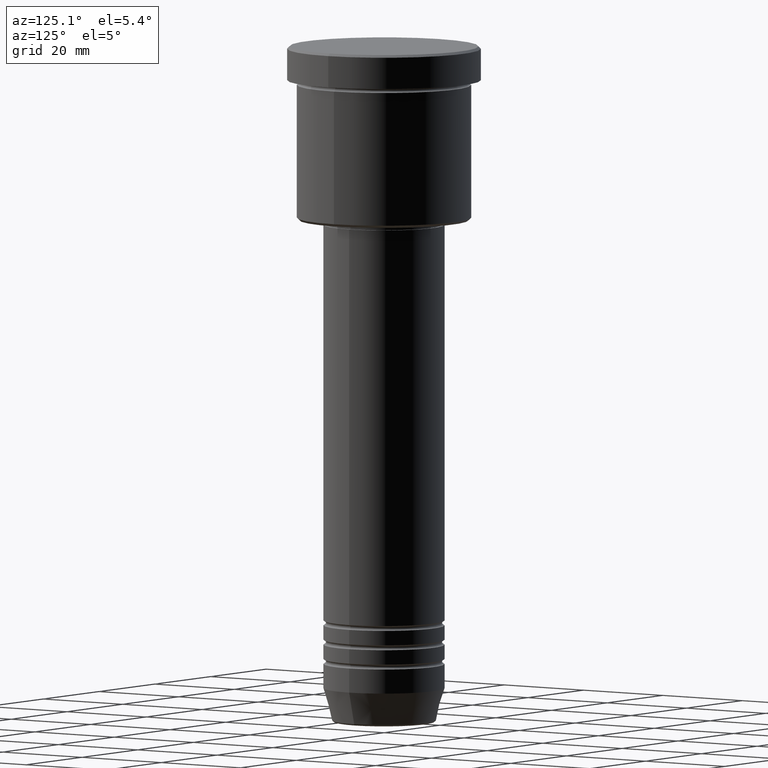
[diagram: clean part render]
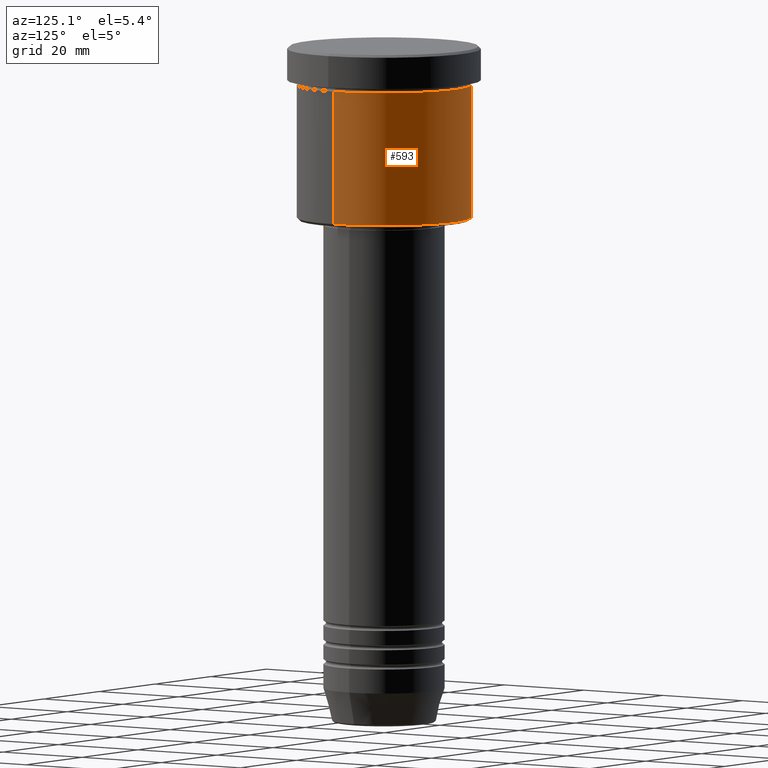
[diagram: same view with one face highlighted and labeled with its STEP entity id]
A machine part, auxiliary view. The second image highlights one B-rep face of the part: STEP entity #593.
In plain terms, the highlighted cylindrical surface (partial cylindrical patch) has radius 18 mm, axis along (-0, -0, 1).
Its self-contained STEP definition (entity closure, byte-faithful):
#4 = VECTOR ( 'NONE', #1109, 1000.000000000000000 ) ;
#10 = AXIS2_PLACEMENT_3D ( 'NONE', #1078, #75, #604 ) ;
#33 = ORIENTED_EDGE ( 'NONE', *, *, #601, .T. ) ;
#54 = DIRECTION ( 'NONE',  ( -0.000000000000000000, -0.000000000000000000, 1.000000000000000000 ) ) ;
#62 = CIRCLE ( 'NONE', #1013, 18.00000000000000000 ) ;
#75 = DIRECTION ( 'NONE',  ( -0.000000000000000000, -0.000000000000000000, 1.000000000000000000 ) ) ;
#96 = CARTESIAN_POINT ( 'NONE',  ( -18.00000000000000000, 2.204364238465235428E-15, -35.50000000000000711 ) ) ;
#219 = AXIS2_PLACEMENT_3D ( 'NONE', #714, #54, #799 ) ;
#308 = LINE ( 'NONE', #397, #4 ) ;
#332 = DIRECTION ( 'NONE',  ( -0.000000000000000000, -0.000000000000000000, 1.000000000000000000 ) ) ;
#338 = CARTESIAN_POINT ( 'NONE',  ( -18.00000000000000000, 2.204364238465235428E-15, 0.000000000000000000 ) ) ;
#344 = EDGE_CURVE ( 'NONE', #666, #1147, #801, .T. ) ;
#389 = VERTEX_POINT ( 'NONE', #1168 ) ;
#397 = CARTESIAN_POINT ( 'NONE',  ( 18.00000000000000000, 0.000000000000000000, 0.000000000000000000 ) ) ;
#440 = ORIENTED_EDGE ( 'NONE', *, *, #985, .F. ) ;
#445 = EDGE_CURVE ( 'NONE', #389, #934, #62, .T. ) ;
#549 = CARTESIAN_POINT ( 'NONE',  ( 0.000000000000000000, 0.000000000000000000, -35.50000000000000711 ) ) ;
#593 = ADVANCED_FACE ( 'NONE', ( #1080 ), #614, .T. ) ;
#601 = EDGE_CURVE ( 'NONE', #934, #1147, #1071, .T. ) ;
#604 = DIRECTION ( 'NONE',  ( 1.000000000000000000, 0.000000000000000000, 0.000000000000000000 ) ) ;
#614 = CYLINDRICAL_SURFACE ( 'NONE', #219, 18.00000000000000000 ) ;
#654 = EDGE_LOOP ( 'NONE', ( #900, #33, #1004, #440 ) ) ;
#666 = VERTEX_POINT ( 'NONE', #709 ) ;
#709 = CARTESIAN_POINT ( 'NONE',  ( 18.00000000000000000, 0.000000000000000000, -7.999999999999996447 ) ) ;
#714 = CARTESIAN_POINT ( 'NONE',  ( 0.000000000000000000, 0.000000000000000000, 0.000000000000000000 ) ) ;
#799 = DIRECTION ( 'NONE',  ( 1.000000000000000000, 0.000000000000000000, 0.000000000000000000 ) ) ;
#801 = CIRCLE ( 'NONE', #10, 18.00000000000000000 ) ;
#891 = VECTOR ( 'NONE', #332, 1000.000000000000000 ) ;
#900 = ORIENTED_EDGE ( 'NONE', *, *, #445, .T. ) ;
#934 = VERTEX_POINT ( 'NONE', #96 ) ;
#935 = DIRECTION ( 'NONE',  ( -1.000000000000000000, 0.000000000000000000, 0.000000000000000000 ) ) ;
#985 = EDGE_CURVE ( 'NONE', #389, #666, #308, .T. ) ;
#1001 = DIRECTION ( 'NONE',  ( -0.000000000000000000, -0.000000000000000000, 1.000000000000000000 ) ) ;
#1004 = ORIENTED_EDGE ( 'NONE', *, *, #344, .F. ) ;
#1013 = AXIS2_PLACEMENT_3D ( 'NONE', #549, #1001, #935 ) ;
#1071 = LINE ( 'NONE', #338, #891 ) ;
#1078 = CARTESIAN_POINT ( 'NONE',  ( 0.000000000000000000, 0.000000000000000000, -7.999999999999996447 ) ) ;
#1080 = FACE_OUTER_BOUND ( 'NONE', #654, .T. ) ;
#1109 = DIRECTION ( 'NONE',  ( -0.000000000000000000, -0.000000000000000000, 1.000000000000000000 ) ) ;
#1147 = VERTEX_POINT ( 'NONE', #1154 ) ;
#1154 = CARTESIAN_POINT ( 'NONE',  ( -18.00000000000000000, 2.204364238465235428E-15, -7.999999999999996447 ) ) ;
#1168 = CARTESIAN_POINT ( 'NONE',  ( 18.00000000000000000, 0.000000000000000000, -35.50000000000000711 ) ) ;